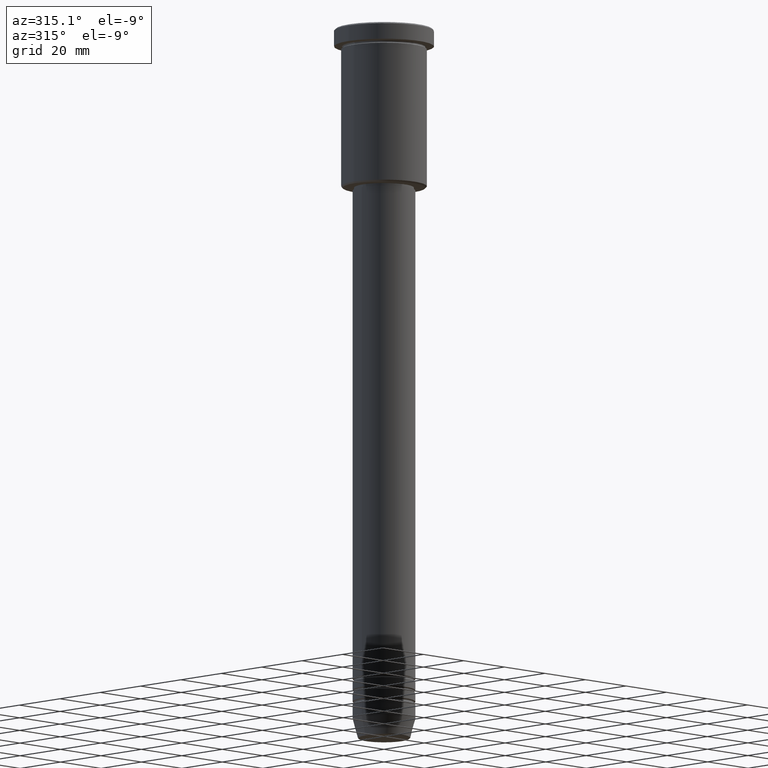
[diagram: clean part render]
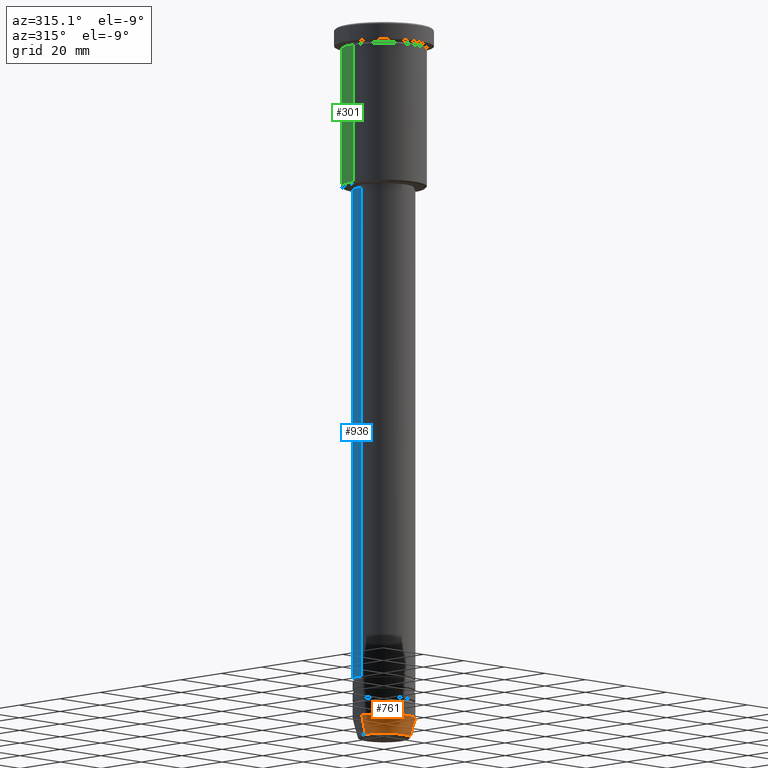
[diagram: same view with three faces highlighted in distinct colors, each labeled with its STEP entity id]
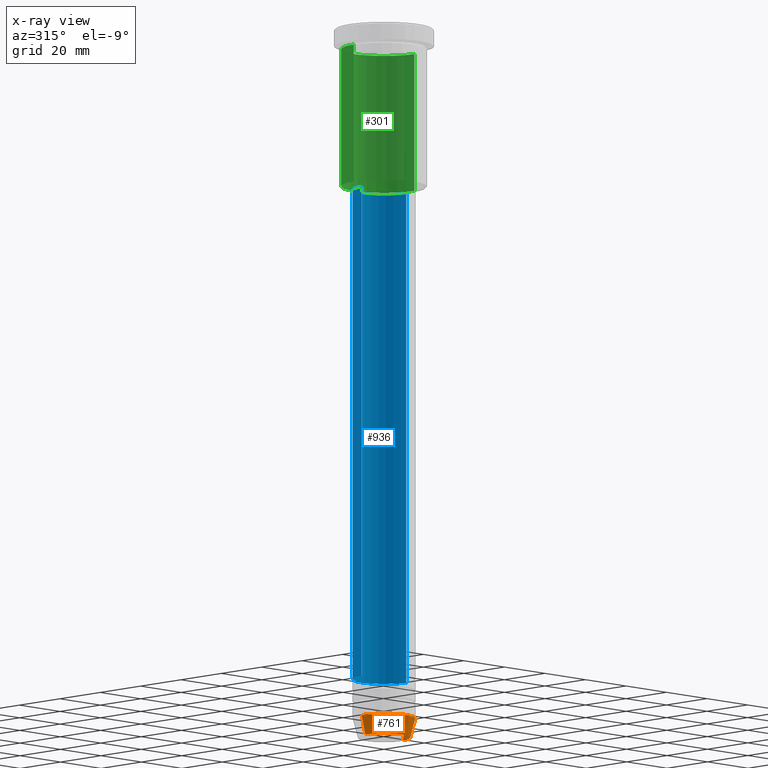
[diagram: x-ray of the same camera — body ghosted, the three highlighted faces saturated]
A machine part, auxiliary view with three faces highlighted in distinct colors.
The next image is the same camera in x-ray (body ghosted, the three faces saturated) — at least one of them is partly hidden behind the body in this view.
Their STEP definitions:

[orange] entity #761 — the highlighted conical surface has half-angle 15 deg.
#17 = DIRECTION ( 'NONE',  ( 1.000000000000000000, 0.000000000000000000, 0.000000000000000000 ) ) ;
#89 = CARTESIAN_POINT ( 'NONE',  ( -11.00000000000000000, 1.347111479062088405E-15, -244.0000000000000000 ) ) ;
#101 = VERTEX_POINT ( 'NONE', #89 ) ;
#120 = CIRCLE ( 'NONE', #264, 9.223655072137189492 ) ;
#179 = VERTEX_POINT ( 'NONE', #1004 ) ;
#203 = CARTESIAN_POINT ( 'NONE',  ( 0.000000000000000000, 0.000000000000000000, -244.0000000000000000 ) ) ;
#204 = EDGE_LOOP ( 'NONE', ( #432, #310, #372, #1160 ) ) ;
#264 = AXIS2_PLACEMENT_3D ( 'NONE', #977, #705, #1068 ) ;
#290 = DIRECTION ( 'NONE',  ( 1.000000000000000000, 0.000000000000000000, 0.000000000000000000 ) ) ;
#310 = ORIENTED_EDGE ( 'NONE', *, *, #848, .T. ) ;
#325 = DIRECTION ( 'NONE',  ( 0.2588190451025213501, 0.000000000000000000, 0.9659258262890680902 ) ) ;
#354 = EDGE_CURVE ( 'NONE', #724, #179, #1148, .T. ) ;
#370 = CONICAL_SURFACE ( 'NONE', #904, 11.00000000000000000, 0.2617993877991500740 ) ;
#372 = ORIENTED_EDGE ( 'NONE', *, *, #354, .T. ) ;
#381 = DIRECTION ( 'NONE',  ( -0.000000000000000000, -0.000000000000000000, 1.000000000000000000 ) ) ;
#411 = CARTESIAN_POINT ( 'NONE',  ( 0.000000000000000000, 0.000000000000000000, -244.0000000000000000 ) ) ;
#432 = ORIENTED_EDGE ( 'NONE', *, *, #1140, .F. ) ;
#511 = CIRCLE ( 'NONE', #561, 11.00000000000000000 ) ;
#559 = DIRECTION ( 'NONE',  ( -0.000000000000000000, -0.000000000000000000, 1.000000000000000000 ) ) ;
#561 = AXIS2_PLACEMENT_3D ( 'NONE', #411, #559, #17 ) ;
#573 = CARTESIAN_POINT ( 'NONE',  ( -11.00000000000000000, 1.347111479062088405E-15, -244.0000000000000000 ) ) ;
#587 = VERTEX_POINT ( 'NONE', #646 ) ;
#610 = CARTESIAN_POINT ( 'NONE',  ( 9.223655072137189492, 0.000000000000000000, -250.6294095225512422 ) ) ;
#646 = CARTESIAN_POINT ( 'NONE',  ( -9.223655072137189492, 1.238341722557647202E-15, -250.6294095225512422 ) ) ;
#705 = DIRECTION ( 'NONE',  ( -0.000000000000000000, -0.000000000000000000, 1.000000000000000000 ) ) ;
#724 = VERTEX_POINT ( 'NONE', #610 ) ;
#761 = ADVANCED_FACE ( 'NONE', ( #942 ), #370, .T. ) ;
#828 = DIRECTION ( 'NONE',  ( -0.2588190451025213501, 3.169619151431772337E-17, 0.9659258262890680902 ) ) ;
#848 = EDGE_CURVE ( 'NONE', #587, #724, #120, .T. ) ;
#904 = AXIS2_PLACEMENT_3D ( 'NONE', #203, #381, #290 ) ;
#927 = LINE ( 'NONE', #573, #1158 ) ;
#942 = FACE_OUTER_BOUND ( 'NONE', #204, .T. ) ;
#977 = CARTESIAN_POINT ( 'NONE',  ( 0.000000000000000000, 0.000000000000000000, -250.6294095225512422 ) ) ;
#1004 = CARTESIAN_POINT ( 'NONE',  ( 11.00000000000000000, 0.000000000000000000, -244.0000000000000000 ) ) ;
#1051 = EDGE_CURVE ( 'NONE', #101, #179, #511, .T. ) ;
#1068 = DIRECTION ( 'NONE',  ( 1.000000000000000000, 0.000000000000000000, 0.000000000000000000 ) ) ;
#1131 = CARTESIAN_POINT ( 'NONE',  ( 11.00000000000000000, 0.000000000000000000, -244.0000000000000000 ) ) ;
#1140 = EDGE_CURVE ( 'NONE', #587, #101, #927, .T. ) ;
#1148 = LINE ( 'NONE', #1131, #1171 ) ;
#1158 = VECTOR ( 'NONE', #828, 1000.000000000000000 ) ;
#1160 = ORIENTED_EDGE ( 'NONE', *, *, #1051, .F. ) ;
#1171 = VECTOR ( 'NONE', #325, 1000.000000000000000 ) ;

[blue] entity #936 — the highlighted cylindrical surface (edge-blend (fillet) strip) has radius 11 mm, axis along (-0, -0, 1).
#8 = VERTEX_POINT ( 'NONE', #174 ) ;
#21 = VERTEX_POINT ( 'NONE', #807 ) ;
#25 = CARTESIAN_POINT ( 'NONE',  ( 11.00000000000000000, 0.000000000000000000, 0.000000000000000000 ) ) ;
#38 = ORIENTED_EDGE ( 'NONE', *, *, #212, .F. ) ;
#64 = DIRECTION ( 'NONE',  ( -0.000000000000000000, -0.000000000000000000, 1.000000000000000000 ) ) ;
#94 = DIRECTION ( 'NONE',  ( -0.000000000000000000, -0.000000000000000000, 1.000000000000000000 ) ) ;
#95 = CARTESIAN_POINT ( 'NONE',  ( -11.00000000000000000, 1.347111479062088405E-15, -57.00000000000002842 ) ) ;
#98 = AXIS2_PLACEMENT_3D ( 'NONE', #968, #64, #784 ) ;
#134 = VERTEX_POINT ( 'NONE', #903 ) ;
#162 = CARTESIAN_POINT ( 'NONE',  ( -11.00000000000000000, 1.347111479062088405E-15, 0.000000000000000000 ) ) ;
#174 = CARTESIAN_POINT ( 'NONE',  ( -11.00000000000000000, 1.347111479062088405E-15, -229.9999999999998863 ) ) ;
#182 = LINE ( 'NONE', #25, #542 ) ;
#212 = EDGE_CURVE ( 'NONE', #21, #134, #182, .T. ) ;
#342 = EDGE_CURVE ( 'NONE', #134, #1130, #698, .T. ) ;
#345 = DIRECTION ( 'NONE',  ( 1.000000000000000000, 0.000000000000000000, 0.000000000000000000 ) ) ;
#386 = EDGE_CURVE ( 'NONE', #21, #8, #1059, .T. ) ;
#397 = DIRECTION ( 'NONE',  ( 1.000000000000000000, 0.000000000000000000, 0.000000000000000000 ) ) ;
#420 = ORIENTED_EDGE ( 'NONE', *, *, #386, .T. ) ;
#492 = DIRECTION ( 'NONE',  ( -0.000000000000000000, -0.000000000000000000, 1.000000000000000000 ) ) ;
#526 = DIRECTION ( 'NONE',  ( -0.000000000000000000, -0.000000000000000000, 1.000000000000000000 ) ) ;
#532 = DIRECTION ( 'NONE',  ( -0.000000000000000000, -0.000000000000000000, 1.000000000000000000 ) ) ;
#542 = VECTOR ( 'NONE', #94, 1000.000000000000000 ) ;
#648 = ORIENTED_EDGE ( 'NONE', *, *, #342, .F. ) ;
#698 = CIRCLE ( 'NONE', #98, 11.00000000000000000 ) ;
#709 = LINE ( 'NONE', #162, #906 ) ;
#718 = CARTESIAN_POINT ( 'NONE',  ( 0.000000000000000000, 0.000000000000000000, 0.000000000000000000 ) ) ;
#736 = FACE_OUTER_BOUND ( 'NONE', #1142, .T. ) ;
#763 = CARTESIAN_POINT ( 'NONE',  ( 0.000000000000000000, 0.000000000000000000, -229.9999999999998863 ) ) ;
#784 = DIRECTION ( 'NONE',  ( 1.000000000000000000, 0.000000000000000000, 0.000000000000000000 ) ) ;
#807 = CARTESIAN_POINT ( 'NONE',  ( 11.00000000000000000, 0.000000000000000000, -229.9999999999998863 ) ) ;
#903 = CARTESIAN_POINT ( 'NONE',  ( 11.00000000000000000, 0.000000000000000000, -57.00000000000002842 ) ) ;
#906 = VECTOR ( 'NONE', #532, 1000.000000000000000 ) ;
#911 = EDGE_CURVE ( 'NONE', #8, #1130, #709, .T. ) ;
#936 = ADVANCED_FACE ( 'NONE', ( #736 ), #983, .T. ) ;
#940 = AXIS2_PLACEMENT_3D ( 'NONE', #718, #492, #397 ) ;
#968 = CARTESIAN_POINT ( 'NONE',  ( 0.000000000000000000, 0.000000000000000000, -57.00000000000002842 ) ) ;
#983 = CYLINDRICAL_SURFACE ( 'NONE', #940, 11.00000000000000000 ) ;
#1003 = ORIENTED_EDGE ( 'NONE', *, *, #911, .T. ) ;
#1059 = CIRCLE ( 'NONE', #1134, 11.00000000000000000 ) ;
#1130 = VERTEX_POINT ( 'NONE', #95 ) ;
#1134 = AXIS2_PLACEMENT_3D ( 'NONE', #763, #526, #345 ) ;
#1142 = EDGE_LOOP ( 'NONE', ( #420, #1003, #648, #38 ) ) ;

[green] entity #301 — the highlighted cylindrical surface (partial cylindrical patch) has radius 15 mm, axis along (-0, -0, 1).
#1 = VERTEX_POINT ( 'NONE', #43 ) ;
#4 = EDGE_CURVE ( 'NONE', #1095, #406, #679, .T. ) ;
#9 = CIRCLE ( 'NONE', #1173, 15.00000000000000000 ) ;
#31 = VECTOR ( 'NONE', #366, 1000.000000000000000 ) ;
#40 = DIRECTION ( 'NONE',  ( -0.000000000000000000, -0.000000000000000000, 1.000000000000000000 ) ) ;
#43 = CARTESIAN_POINT ( 'NONE',  ( -15.00000000000000000, 1.836970198721029589E-15, -6.999999999999995559 ) ) ;
#48 = VERTEX_POINT ( 'NONE', #338 ) ;
#56 = AXIS2_PLACEMENT_3D ( 'NONE', #931, #40, #404 ) ;
#81 = CARTESIAN_POINT ( 'NONE',  ( 15.00000000000000000, 0.000000000000000000, -6.999999999999995559 ) ) ;
#210 = FACE_OUTER_BOUND ( 'NONE', #522, .T. ) ;
#239 = DIRECTION ( 'NONE',  ( 1.000000000000000000, 0.000000000000000000, 0.000000000000000000 ) ) ;
#272 = DIRECTION ( 'NONE',  ( 1.000000000000000000, 0.000000000000000000, 0.000000000000000000 ) ) ;
#301 = ADVANCED_FACE ( 'NONE', ( #210 ), #879, .T. ) ;
#322 = DIRECTION ( 'NONE',  ( -0.000000000000000000, -0.000000000000000000, 1.000000000000000000 ) ) ;
#338 = CARTESIAN_POINT ( 'NONE',  ( -15.00000000000000000, 1.836970198721029589E-15, -55.50000000000000711 ) ) ;
#364 = ORIENTED_EDGE ( 'NONE', *, *, #824, .F. ) ;
#366 = DIRECTION ( 'NONE',  ( -0.000000000000000000, -0.000000000000000000, 1.000000000000000000 ) ) ;
#404 = DIRECTION ( 'NONE',  ( -1.000000000000000000, 0.000000000000000000, 0.000000000000000000 ) ) ;
#406 = VERTEX_POINT ( 'NONE', #81 ) ;
#464 = CARTESIAN_POINT ( 'NONE',  ( -15.00000000000000000, 1.836970198721029589E-15, 0.000000000000000000 ) ) ;
#483 = DIRECTION ( 'NONE',  ( -0.000000000000000000, -0.000000000000000000, 1.000000000000000000 ) ) ;
#522 = EDGE_LOOP ( 'NONE', ( #1089, #600, #364, #562 ) ) ;
#562 = ORIENTED_EDGE ( 'NONE', *, *, #4, .F. ) ;
#576 = AXIS2_PLACEMENT_3D ( 'NONE', #685, #855, #239 ) ;
#600 = ORIENTED_EDGE ( 'NONE', *, *, #1083, .T. ) ;
#666 = CARTESIAN_POINT ( 'NONE',  ( 0.000000000000000000, 0.000000000000000000, -6.999999999999995559 ) ) ;
#679 = LINE ( 'NONE', #965, #803 ) ;
#685 = CARTESIAN_POINT ( 'NONE',  ( 0.000000000000000000, 0.000000000000000000, 0.000000000000000000 ) ) ;
#803 = VECTOR ( 'NONE', #483, 1000.000000000000000 ) ;
#824 = EDGE_CURVE ( 'NONE', #406, #1, #9, .T. ) ;
#855 = DIRECTION ( 'NONE',  ( -0.000000000000000000, -0.000000000000000000, 1.000000000000000000 ) ) ;
#879 = CYLINDRICAL_SURFACE ( 'NONE', #576, 15.00000000000000000 ) ;
#910 = LINE ( 'NONE', #464, #31 ) ;
#931 = CARTESIAN_POINT ( 'NONE',  ( 0.000000000000000000, 0.000000000000000000, -55.50000000000000711 ) ) ;
#951 = EDGE_CURVE ( 'NONE', #1095, #48, #959, .T. ) ;
#959 = CIRCLE ( 'NONE', #56, 15.00000000000000000 ) ;
#965 = CARTESIAN_POINT ( 'NONE',  ( 15.00000000000000000, 0.000000000000000000, 0.000000000000000000 ) ) ;
#1083 = EDGE_CURVE ( 'NONE', #48, #1, #910, .T. ) ;
#1089 = ORIENTED_EDGE ( 'NONE', *, *, #951, .T. ) ;
#1095 = VERTEX_POINT ( 'NONE', #1169 ) ;
#1169 = CARTESIAN_POINT ( 'NONE',  ( 15.00000000000000000, 0.000000000000000000, -55.50000000000000711 ) ) ;
#1173 = AXIS2_PLACEMENT_3D ( 'NONE', #666, #322, #272 ) ;